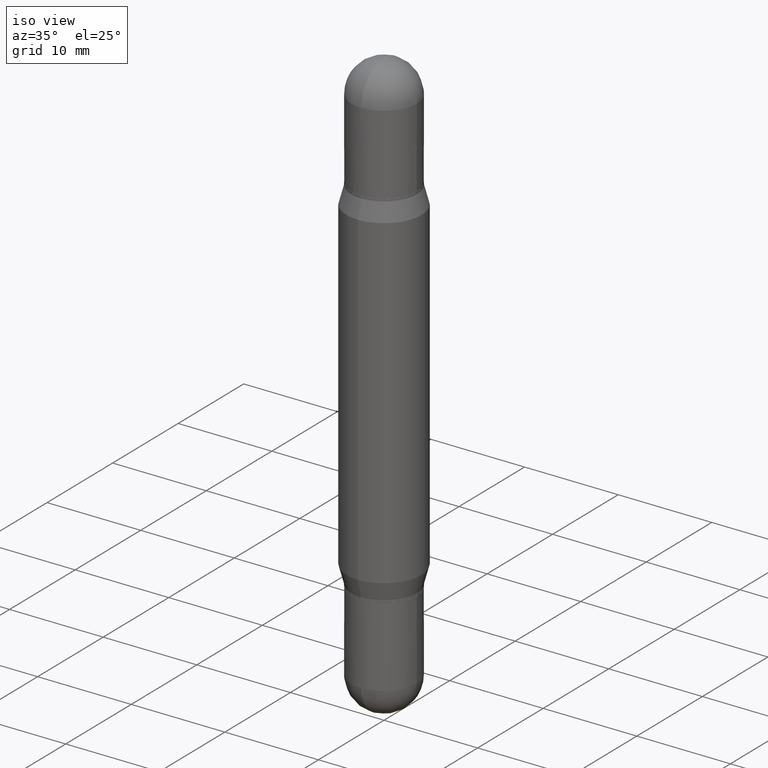
[diagram: clean part render]
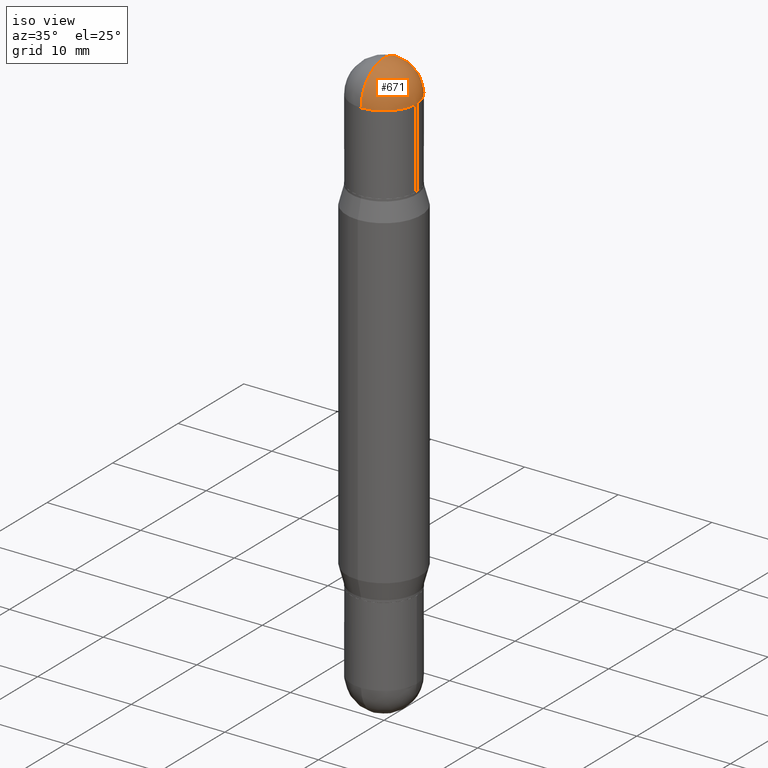
[diagram: same view with one face highlighted and labeled with its STEP entity id]
A machine part, iso view. The second image highlights one B-rep face of the part: STEP entity #671.
In plain terms, the highlighted spherical surface has radius 3.5001 mm.
Its self-contained STEP definition (entity closure, byte-faithful):
#24 = ORIENTED_EDGE ( 'NONE', *, *, #226, .T. ) ;
#50 = DIRECTION ( 'NONE',  ( 6.860497997771531562E-15, 1.000000000000000000, 0.000000000000000000 ) ) ;
#54 = EDGE_LOOP ( 'NONE', ( #675, #685, #222, #24 ) ) ;
#111 = VERTEX_POINT ( 'NONE', #1040 ) ;
#113 = DIRECTION ( 'NONE',  ( -1.000000000000000000, 6.982962677686265922E-15, 1.566701062080016245E-31 ) ) ;
#142 = CARTESIAN_POINT ( 'NONE',  ( 5.760493897703991812E-29, -4.484057844052079423E-16, -0.1378000000000000891 ) ) ;
#155 = AXIS2_PLACEMENT_3D ( 'NONE', #142, #909, #50 ) ;
#177 = CIRCLE ( 'NONE', #229, 0.1378000000000000891 ) ;
#209 = CIRCLE ( 'NONE', #155, 0.1378000000000000613 ) ;
#222 = ORIENTED_EDGE ( 'NONE', *, *, #979, .T. ) ;
#226 = EDGE_CURVE ( 'NONE', #111, #827, #517, .T. ) ;
#229 = AXIS2_PLACEMENT_3D ( 'NONE', #494, #422, #591 ) ;
#267 = CARTESIAN_POINT ( 'NONE',  ( 5.760493897703991812E-29, -4.484057844052079423E-16, -0.1378000000000000891 ) ) ;
#283 = DIRECTION ( 'NONE',  ( 1.000000000000000000, -6.982962677686267499E-15, 0.000000000000000000 ) ) ;
#293 = AXIS2_PLACEMENT_3D ( 'NONE', #267, #717, #778 ) ;
#345 = AXIS2_PLACEMENT_3D ( 'NONE', #349, #113, #785 ) ;
#349 = CARTESIAN_POINT ( 'NONE',  ( 5.760493897703991812E-29, -4.484057844052079423E-16, -0.1378000000000000891 ) ) ;
#422 = DIRECTION ( 'NONE',  ( 2.445468806185136597E-29, 3.479614466977828254E-15, 1.000000000000000000 ) ) ;
#425 = EDGE_CURVE ( 'NONE', #754, #915, #209, .T. ) ;
#426 = CARTESIAN_POINT ( 'NONE',  ( -9.453766240928600585E-16, -0.1378000000000005332, -0.1377999999999998948 ) ) ;
#437 = AXIS2_PLACEMENT_3D ( 'NONE', #446, #872, #283 ) ;
#446 = CARTESIAN_POINT ( 'NONE',  ( 5.728510678488681895E-29, -4.942075746933196151E-16, -0.1378000000000003666 ) ) ;
#491 = CARTESIAN_POINT ( 'NONE',  ( 9.622522569852254583E-16, 0.1377999999999996172, -0.1378000000000008385 ) ) ;
#494 = CARTESIAN_POINT ( 'NONE',  ( 5.728510678488681895E-29, -4.942075746933196151E-16, -0.1378000000000003666 ) ) ;
#517 = CIRCLE ( 'NONE', #437, 0.1378000000000000891 ) ;
#562 = CARTESIAN_POINT ( 'NONE',  ( 6.103371594928750541E-29, 3.952290559046230136E-17, -3.414809992080329023E-17 ) ) ;
#591 = DIRECTION ( 'NONE',  ( 1.000000000000000000, -6.982962677686267499E-15, 0.000000000000000000 ) ) ;
#671 = ADVANCED_FACE ( 'NONE', ( #884 ), #982, .T. ) ;
#675 = ORIENTED_EDGE ( 'NONE', *, *, #725, .F. ) ;
#685 = ORIENTED_EDGE ( 'NONE', *, *, #425, .T. ) ;
#717 = DIRECTION ( 'NONE',  ( 1.000000000000000000, -6.982962677686265922E-15, -1.566701062080046460E-31 ) ) ;
#725 = EDGE_CURVE ( 'NONE', #754, #827, #986, .T. ) ;
#754 = VERTEX_POINT ( 'NONE', #562 ) ;
#778 = DIRECTION ( 'NONE',  ( 6.982962677686265922E-15, 1.000000000000000000, -3.469328003564919108E-15 ) ) ;
#785 = DIRECTION ( 'NONE',  ( -6.982962677686265922E-15, -1.000000000000000000, 0.000000000000000000 ) ) ;
#827 = VERTEX_POINT ( 'NONE', #491 ) ;
#872 = DIRECTION ( 'NONE',  ( 2.445468806185136597E-29, 3.479614466977828254E-15, 1.000000000000000000 ) ) ;
#884 = FACE_OUTER_BOUND ( 'NONE', #54, .T. ) ;
#909 = DIRECTION ( 'NONE',  ( 1.000000000000000000, -6.860497997771530774E-15, -5.827999781331232286E-31 ) ) ;
#915 = VERTEX_POINT ( 'NONE', #426 ) ;
#979 = EDGE_CURVE ( 'NONE', #915, #111, #177, .T. ) ;
#982 = SPHERICAL_SURFACE ( 'NONE', #293, 0.1378000000000000613 ) ;
#986 = CIRCLE ( 'NONE', #345, 0.1378000000000000613 ) ;
#1040 = CARTESIAN_POINT ( 'NONE',  ( 0.1378000000000000891, -2.038599332003877247E-15, -0.1378000000000003666 ) ) ;